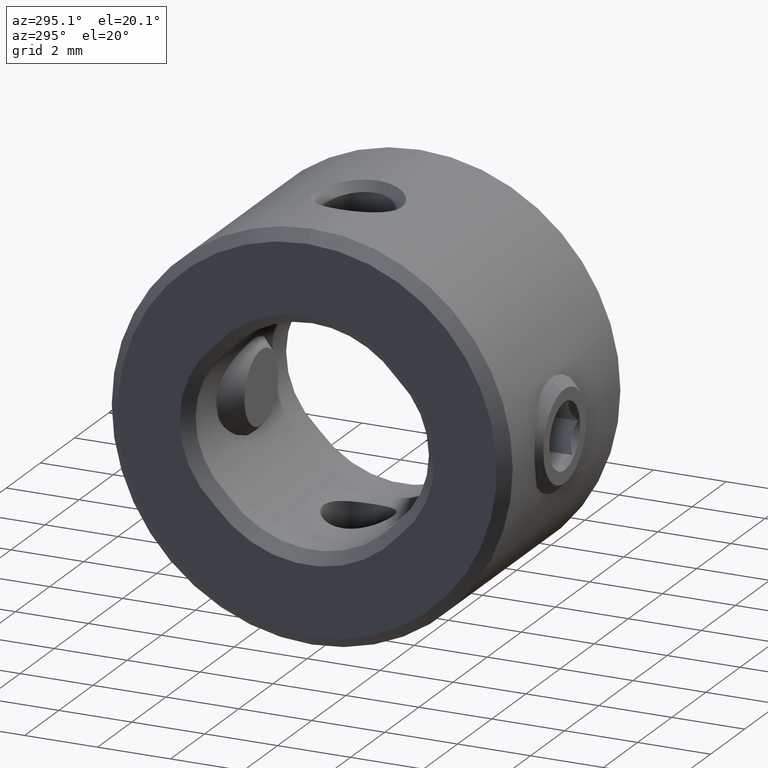
[diagram: clean part render]
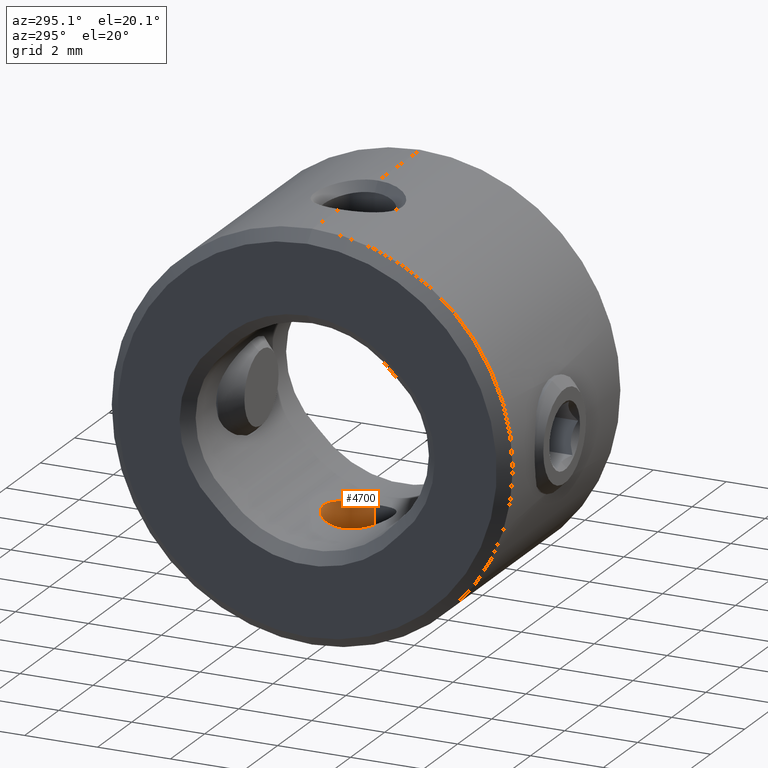
[diagram: same view with one face highlighted and labeled with its STEP entity id]
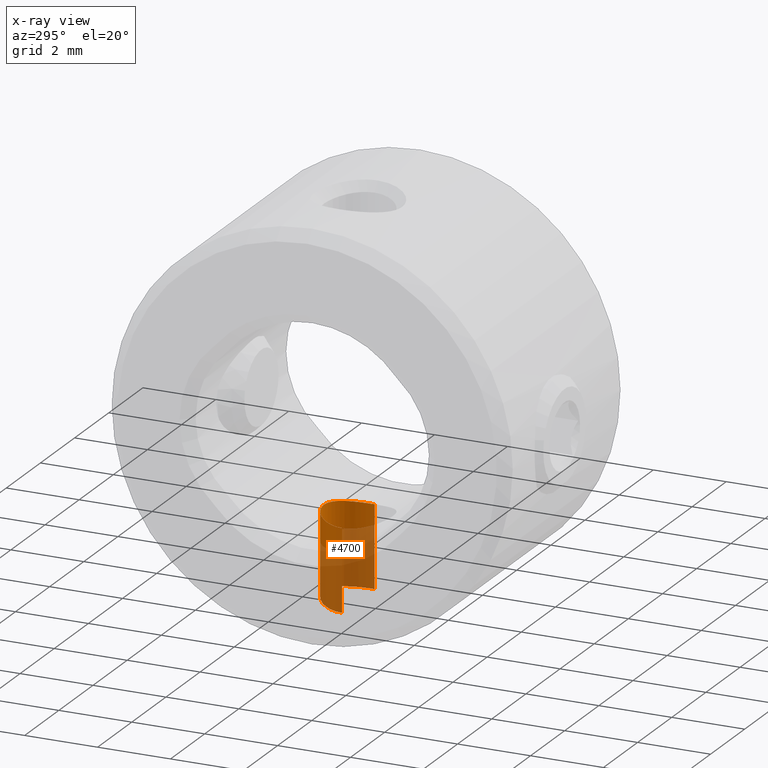
[diagram: x-ray of the same camera — body ghosted, the highlighted face saturated]
A machine part, auxiliary view. The second image highlights one B-rep face of the part: STEP entity #4700.
The next image is the same camera in x-ray: the body ghosted, the highlighted face saturated — about 64% of this face is hidden behind the body in this view.
In plain terms, the highlighted cylindrical surface (partial cylindrical patch) has radius 0.95 mm, axis along (-0, -0, 1).
Its self-contained STEP definition (entity closure, byte-faithful):
#8 = CARTESIAN_POINT ( 'NONE',  ( 2.580720717055093427, 0.8526111675366945253, -5.142162792567869900 ) ) ;
#56 = CARTESIAN_POINT ( 'NONE',  ( 2.260809595717401255, 0.5967537338312135509, -5.194200861994646701 ) ) ;
#79 = CARTESIAN_POINT ( 'NONE',  ( 3.755057708517767878, 0.5767380239020919452, -5.197499001152135811 ) ) ;
#107 = CARTESIAN_POINT ( 'NONE',  ( 3.773227041701959994, 0.5519725902055671041, -5.201381851915404475 ) ) ;
#129 = CARTESIAN_POINT ( 'NONE',  ( 3.619841365519756771, 0.7200952593029100735, -5.171488533006992405 ) ) ;
#155 = CARTESIAN_POINT ( 'NONE',  ( 3.925361420055899497, 0.2172719112508714190, -5.237290996156594325 ) ) ;
#188 = CARTESIAN_POINT ( 'NONE',  ( 3.215434077688460679, 0.9257231561113895557, -5.123788185422677444 ) ) ;
#275 = CARTESIAN_POINT ( 'NONE',  ( 3.758649441743788788, 0.5849056453515856235, -2.943783764361338040 ) ) ;
#337 = CARTESIAN_POINT ( 'NONE',  ( 2.750764673843079322, 0.9252346180244336304, -2.854202044475190991 ) ) ;
#507 = VERTEX_POINT ( 'NONE', #2743 ) ;
#551 = FACE_OUTER_BOUND ( 'NONE', #2180, .T. ) ;
#601 = CARTESIAN_POINT ( 'NONE',  ( 2.423875342681695688, 0.7555251781699551250, -5.164144766995541147 ) ) ;
#625 = CARTESIAN_POINT ( 'NONE',  ( 2.218428971697109287, 0.5402222282991363533, -5.203186012146431061 ) ) ;
#703 = CARTESIAN_POINT ( 'NONE',  ( 3.918401561434590175, 0.2449544080688940140, -5.235502726191666234 ) ) ;
#729 = CARTESIAN_POINT ( 'NONE',  ( 3.480990313732850172, 0.8194968893417500233, -5.149977801534969757 ) ) ;
#755 = CARTESIAN_POINT ( 'NONE',  ( 3.643014946678837074, 0.6994800063100714560, -5.175592035741784613 ) ) ;
#787 = CARTESIAN_POINT ( 'NONE',  ( 3.943968405040195080, 0.1242055347872059595, -5.242091780187043248 ) ) ;
#808 = EDGE_CURVE ( 'NONE', #6144, #6332, #7300, .T. ) ;
#814 = CARTESIAN_POINT ( 'NONE',  ( 3.514748423759796125, 0.7984976429080666849, -5.154746138825196944 ) ) ;
#936 = CARTESIAN_POINT ( 'NONE',  ( 3.950000000000000178, -8.997605898933414137E-17, -3.000000000000000444 ) ) ;
#988 = DIRECTION ( 'NONE',  ( 1.000000000000000000, 0.000000000000000000, 0.000000000000000000 ) ) ;
#1074 = ORIENTED_EDGE ( 'NONE', *, *, #7398, .F. ) ;
#1228 = CARTESIAN_POINT ( 'NONE',  ( 2.526243878217248273, 0.8235883033784368035, -5.149023321053983970 ) ) ;
#1253 = CARTESIAN_POINT ( 'NONE',  ( 2.081682434594883002, 0.2452903660823848309, -5.235481332092808415 ) ) ;
#1276 = VERTEX_POINT ( 'NONE', #2009 ) ;
#1281 = CARTESIAN_POINT ( 'NONE',  ( 2.240701003857684448, 0.5709861646075774511, -5.198403740315459487 ) ) ;
#1304 = CARTESIAN_POINT ( 'NONE',  ( 2.374800091205082619, 0.7153209321184779146, -5.172438220637550543 ) ) ;
#1332 = CARTESIAN_POINT ( 'NONE',  ( 3.461329908873358452, 0.8305938929979420626, -5.147387325591993523 ) ) ;
#1390 = CARTESIAN_POINT ( 'NONE',  ( 2.756000709777283397, 0.9186563968317799089, -5.125646127520788298 ) ) ;
#1417 = CARTESIAN_POINT ( 'NONE',  ( 3.657315635002728715, 0.6861801476364087771, -5.178183203823817138 ) ) ;
#1448 = CARTESIAN_POINT ( 'NONE',  ( 2.519549751153395967, 0.8290626662554543280, -2.883605989815283710 ) ) ;
#1483 = VECTOR ( 'NONE', #3879, 1000.000000000000000 ) ;
#1573 = CARTESIAN_POINT ( 'NONE',  ( 2.170484287138847002, 0.4793762731347327444, -2.963700863258226459 ) ) ;
#1655 = B_SPLINE_CURVE_WITH_KNOTS ( 'NONE', 3,
 ( #6926, #4998, #5715, #4442, #5635, #1836, #1253, #5077, #3070, #7562, #3761, #6357, #4411, #6275, #7624, #2461, #7592, #3095, #1891, #1867, #625, #4356, #1281, #6901, #3157, #56, #7512, #3712, #2539, #7536, #5100, #1304, #3739, #1811, #8159, #4379, #6255, #601, #5026, #5053, #2435, #6877, #2512, #6330, #1228, #3123, #5685, #8, #8133, #5657, #6950, #2486, #1390, #3261, #2567, #7058, #3942, #7699, #4571, #7010, #188, #7035, #2616, #3885, #2648, #6380, #3234, #1947, #3862, #4544, #1332, #729, #3842, #814, #7121, #5742, #3207, #6432, #5234, #4597, #3291, #3911, #7647, #129, #755, #1417, #5175, #5126, #3315, #5762, #7728, #7671, #5816, #5202, #79, #6452, #107, #7756, #7089, #5787, #4493, #2027, #4517, #703, #155, #787, #1975, #6403 ),
 .UNSPECIFIED., .F., .F.,
 ( 4, 2, 2, 2, 2, 2, 2, 2, 1, 2, 2, 2, 1, 2, 2, 2, 2, 1, 2, 2, 2, 2, 2, 2, 2, 2, 2, 2, 2, 2, 2, 2, 2, 2, 2, 2, 2, 1, 2, 2, 2, 1, 2, 2, 2, 2, 2, 1, 2, 2, 2, 2, 2, 2, 2, 2, 4 ),
 ( 0.5001721334120322604, 0.5157917542429063529, 0.5314113750737804454, 0.5470309959046544268, 0.5548408063200914730, 0.5626506167355285193, 0.5704604271509655655, 0.5782702375664026118, 0.5860800479818396580, 0.5899849531895582366, 0.5938898583972768153, 0.6016996688127137505, 0.6056045740204322181, 0.6075570266242913409, 0.6095094792281504636, 0.6251291000590241120, 0.6329389104744607142, 0.6368438156821791818, 0.6387962682860384156, 0.6407487208898977604, 0.6485585313053348067, 0.6524634365130533853, 0.6563683417207719639, 0.6641781521362091212, 0.6719879625516462784, 0.6797977729670835467, 0.6876075833825207040, 0.7032272042133951295, 0.7188468250442696661, 0.7500860667060182951, 0.7657056875368926097, 0.7813253083677671462, 0.7969449291986416828, 0.8047547396140788400, 0.8125645500295159973, 0.8203743604449531546, 0.8281841708603904229, 0.8359939812758276911, 0.8398988864835461587, 0.8438037916912646264, 0.8516136021067016726, 0.8555185073144200292, 0.8574709599182792630, 0.8594234125221386078, 0.8672332229375754320, 0.8750430333530123672, 0.8828528437684493024, 0.8867577489761675480, 0.8887102015800267818, 0.8906626541838861266, 0.8984724645993230618, 0.9023773698070414184, 0.9062822750147599971, 0.9375215166765067387, 0.9531411375073801651, 0.9687607583382533694, 1.000000000000000000 ),
 .UNSPECIFIED. ) ;
#1787 = LINE ( 'NONE', #2584, #1483 ) ;
#1811 = CARTESIAN_POINT ( 'NONE',  ( 2.389404017465515562, 0.7277912320778338051, -5.169907483959435446 ) ) ;
#1836 = CARTESIAN_POINT ( 'NONE',  ( 2.074308314773529283, 0.2156097577730124171, -5.237376628592349981 ) ) ;
#1867 = CARTESIAN_POINT ( 'NONE',  ( 2.206822509896597229, 0.5228936806378496893, -5.205739236885365884 ) ) ;
#1891 = CARTESIAN_POINT ( 'NONE',  ( 2.201798469460336527, 0.5152064525645199122, -5.206852394098592463 ) ) ;
#1947 = CARTESIAN_POINT ( 'NONE',  ( 3.391824206813338627, 0.8655729844902696479, -5.139020422191961757 ) ) ;
#1975 = CARTESIAN_POINT ( 'NONE',  ( 3.949999999999998845, 0.06170388010747530211, -5.243691933688772622 ) ) ;
#2009 = CARTESIAN_POINT ( 'NONE',  ( 2.049999999999999822, 1.163600010519012310E-16, -3.000000000000000444 ) ) ;
#2013 = CYLINDRICAL_SURFACE ( 'NONE', #7584, 0.9500000000000002887 ) ;
#2026 = VECTOR ( 'NONE', #8079, 1000.000000000000000 ) ;
#2027 = CARTESIAN_POINT ( 'NONE',  ( 3.889820982924576676, 0.3343136047339508310, -5.228334080858407340 ) ) ;
#2174 = ORIENTED_EDGE ( 'NONE', *, *, #808, .T. ) ;
#2180 = EDGE_LOOP ( 'NONE', ( #7823, #3044, #2174, #1074 ) ) ;
#2287 = B_SPLINE_CURVE_WITH_KNOTS ( 'NONE', 3,
 ( #7147, #3345, #4722, #1573, #4757, #4003, #1448, #337, #7785, #5265, #7880, #3972, #5332, #275, #6648, #3479, #7851, #936 ),
 .UNSPECIFIED., .F., .F.,
 ( 4, 2, 2, 2, 2, 2, 2, 2, 4 ),
 ( 0.002989500936350762954, 0.003363089938736665320, 0.003736678941122567685, 0.004110267943508470051, 0.004483856945894372850, 0.004857445948280274782, 0.005231034950666177581, 0.005604623953052079513, 0.005978212955437981445 ),
 .UNSPECIFIED. ) ;
#2435 = CARTESIAN_POINT ( 'NONE',  ( 2.460506148840101659, 0.7819842469468174517, -5.158417178712464413 ) ) ;
#2461 = CARTESIAN_POINT ( 'NONE',  ( 2.169853809312081605, 0.4621347184219697923, -5.214089857615570978 ) ) ;
#2486 = CARTESIAN_POINT ( 'NONE',  ( 2.696500070168296403, 0.9007513650621288281, -5.130253817126154914 ) ) ;
#2512 = CARTESIAN_POINT ( 'NONE',  ( 2.485903393450765275, 0.7990487675098680853, -5.154631520296028668 ) ) ;
#2539 = CARTESIAN_POINT ( 'NONE',  ( 2.299123204362592432, 0.6427044587608004012, -5.186368206435084005 ) ) ;
#2567 = CARTESIAN_POINT ( 'NONE',  ( 2.876553692692488617, 0.9440573386276773782, -5.118950143312169132 ) ) ;
#2584 = CARTESIAN_POINT ( 'NONE',  ( 2.049999999999999822, 1.163414459189985682E-16, -5.500000000000000000 ) ) ;
#2616 = CARTESIAN_POINT ( 'NONE',  ( 3.289397408651654864, 0.9049803825322556561, -5.129165193125505340 ) ) ;
#2648 = CARTESIAN_POINT ( 'NONE',  ( 3.334173514330129429, 0.8894265404133848696, -5.133107763227902964 ) ) ;
#2743 = CARTESIAN_POINT ( 'NONE',  ( 2.050000000635553654, -5.749988322858997587E-14, -5.243691723835332219 ) ) ;
#3044 = ORIENTED_EDGE ( 'NONE', *, *, #7350, .T. ) ;
#3070 = CARTESIAN_POINT ( 'NONE',  ( 2.100183482954767200, 0.3050974142991227933, -5.230826965468863499 ) ) ;
#3095 = CARTESIAN_POINT ( 'NONE',  ( 2.193276672534407279, 0.5017577553389874767, -5.208756880338807349 ) ) ;
#3123 = CARTESIAN_POINT ( 'NONE',  ( 2.538066783530578796, 0.8302882577228816174, -5.147460551303025156 ) ) ;
#3157 = CARTESIAN_POINT ( 'NONE',  ( 2.255586851986914443, 0.5902258361764716188, -5.195282454461532140 ) ) ;
#3207 = CARTESIAN_POINT ( 'NONE',  ( 3.551726011965821606, 0.7735223966764119830, -5.160278178635790525 ) ) ;
#3234 = CARTESIAN_POINT ( 'NONE',  ( 3.377872023732322315, 0.8717427027033994857, -5.137505036208523279 ) ) ;
#3261 = CARTESIAN_POINT ( 'NONE',  ( 2.783703467630569861, 0.9255871771130576020, -5.123825132732759080 ) ) ;
#3291 = CARTESIAN_POINT ( 'NONE',  ( 3.596158416365989652, 0.7396706713882663653, -5.167460763510882238 ) ) ;
#3315 = CARTESIAN_POINT ( 'NONE',  ( 3.713583704914705574, 0.6271832059152029348, -5.188997362618802178 ) ) ;
#3345 = CARTESIAN_POINT ( 'NONE',  ( 2.049999999999999822, 0.1245128461822960497, -3.000000000000000444 ) ) ;
#3478 = CARTESIAN_POINT ( 'NONE',  ( 3.950000000000000178, -8.997605898933414137E-17, -3.000000000000000444 ) ) ;
#3479 = CARTESIAN_POINT ( 'NONE',  ( 3.924703537857179736, 0.2507267896086355918, -2.991736978327216079 ) ) ;
#3712 = CARTESIAN_POINT ( 'NONE',  ( 2.279985552594991915, 0.6201331292185429112, -5.190266311758900741 ) ) ;
#3739 = CARTESIAN_POINT ( 'NONE',  ( 2.382684050851487711, 0.7221397117372588825, -5.171062123299022595 ) ) ;
#3761 = CARTESIAN_POINT ( 'NONE',  ( 2.117218641623705544, 0.3513124475054746343, -5.226618549802176439 ) ) ;
#3842 = CARTESIAN_POINT ( 'NONE',  ( 3.501182888989483377, 0.8070812457721268096, -5.152806977270146582 ) ) ;
#3862 = CARTESIAN_POINT ( 'NONE',  ( 3.420000344478285825, 0.8522573033787494978, -5.142247987577778012 ) ) ;
#3879 = DIRECTION ( 'NONE',  ( -0.000000000000000000, -0.000000000000000000, 1.000000000000000000 ) ) ;
#3885 = CARTESIAN_POINT ( 'NONE',  ( 3.304299938263309144, 0.9000850271193365781, -5.130414845728942019 ) ) ;
#3911 = CARTESIAN_POINT ( 'NONE',  ( 3.600797856987477896, 0.7358993317013513558, -5.168241019687670246 ) ) ;
#3942 = CARTESIAN_POINT ( 'NONE',  ( 3.031133253798630633, 0.9499884245176474229, -5.117336044351032953 ) ) ;
#3972 = CARTESIAN_POINT ( 'NONE',  ( 3.479261175722888400, 0.8295542093167737052, -2.883455553718913933 ) ) ;
#4003 = CARTESIAN_POINT ( 'NONE',  ( 2.415951912807403179, 0.7594511932138632293, -2.903675013955858919 ) ) ;
#4356 = CARTESIAN_POINT ( 'NONE',  ( 2.226867646427525216, 0.5522744125192550202, -5.201352138003952241 ) ) ;
#4379 = CARTESIAN_POINT ( 'NONE',  ( 2.394395562152984436, 0.7319574216982378534, -5.169053722695225339 ) ) ;
#4382 = EDGE_CURVE ( 'NONE', #507, #1276, #1787, .T. ) ;
#4411 = CARTESIAN_POINT ( 'NONE',  ( 2.134894496486834825, 0.3928544938135008491, -5.222327363989434978 ) ) ;
#4442 = CARTESIAN_POINT ( 'NONE',  ( 2.057628053222753994, 0.1241472852257603648, -5.241689451733985372 ) ) ;
#4471 = CARTESIAN_POINT ( 'NONE',  ( 3.950000000000000178, -1.138003470772356672E-16, -5.243691718005279334 ) ) ;
#4493 = CARTESIAN_POINT ( 'NONE',  ( 3.852607333506896659, 0.4239676953525332581, -5.219268939915060024 ) ) ;
#4517 = CARTESIAN_POINT ( 'NONE',  ( 3.900446408541381249, 0.3044016350527666281, -5.230976495384171976 ) ) ;
#4544 = CARTESIAN_POINT ( 'NONE',  ( 3.435689467689216237, 0.8443258776392352782, -5.144145535261084312 ) ) ;
#4571 = CARTESIAN_POINT ( 'NONE',  ( 3.124270673434070389, 0.9423542155832547174, -5.119389579232805687 ) ) ;
#4597 = CARTESIAN_POINT ( 'NONE',  ( 3.589610036769995016, 0.7449010431299304402, -5.166371073027069549 ) ) ;
#4700 = ADVANCED_FACE ( 'NONE', ( #551 ), #2013, .F. ) ;
#4714 = CARTESIAN_POINT ( 'NONE',  ( 3.000000000000000000, 0.000000000000000000, -5.500000000000000000 ) ) ;
#4722 = CARTESIAN_POINT ( 'NONE',  ( 2.075184027735848424, 0.2502265904599388913, -2.991773900472576742 ) ) ;
#4757 = CARTESIAN_POINT ( 'NONE',  ( 2.240572809125383369, 0.5840792966606344061, -2.943967743837886175 ) ) ;
#4778 = DIRECTION ( 'NONE',  ( -0.000000000000000000, -0.000000000000000000, 1.000000000000000000 ) ) ;
#4998 = CARTESIAN_POINT ( 'NONE',  ( 2.049999999999998046, 0.03085802566920712448, -5.243692022543305242 ) ) ;
#5026 = CARTESIAN_POINT ( 'NONE',  ( 2.442498683086873346, 0.7692540286178853881, -5.161194597574092491 ) ) ;
#5053 = CARTESIAN_POINT ( 'NONE',  ( 2.448587565675572453, 0.7736260758174638985, -5.160245757878905160 ) ) ;
#5077 = CARTESIAN_POINT ( 'NONE',  ( 2.095245626761324864, 0.2901088636384538955, -5.232062538260255913 ) ) ;
#5100 = CARTESIAN_POINT ( 'NONE',  ( 2.357578354904776852, 0.7000216264153799051, -5.175485692646526026 ) ) ;
#5126 = CARTESIAN_POINT ( 'NONE',  ( 3.698038845533651919, 0.6445802362262776919, -5.185917881704952492 ) ) ;
#5175 = CARTESIAN_POINT ( 'NONE',  ( 3.685854747790486385, 0.6576551558093436389, -5.183549751218364143 ) ) ;
#5202 = CARTESIAN_POINT ( 'NONE',  ( 3.745106086939191226, 0.5895819869852531037, -5.195412092686497729 ) ) ;
#5234 = CARTESIAN_POINT ( 'NONE',  ( 3.579864316791647738, 0.7525787488046852269, -5.164762728390271285 ) ) ;
#5265 = CARTESIAN_POINT ( 'NONE',  ( 3.125226801674089838, 0.9499979292215294802, -2.845611346350652493 ) ) ;
#5332 = CARTESIAN_POINT ( 'NONE',  ( 3.584450182695408937, 0.7590003777137520613, -2.903772699766966170 ) ) ;
#5635 = CARTESIAN_POINT ( 'NONE',  ( 2.062589267249629543, 0.1570152281429196550, -5.240399422813781349 ) ) ;
#5657 = CARTESIAN_POINT ( 'NONE',  ( 2.621524856295111228, 0.8715044805536917849, -5.137564763893759157 ) ) ;
#5685 = CARTESIAN_POINT ( 'NONE',  ( 2.566558923283190019, 0.8455115140581203059, -5.143864495350706001 ) ) ;
#5715 = CARTESIAN_POINT ( 'NONE',  ( 2.051504688755469541, 0.06191994063955030131, -5.243291625507055187 ) ) ;
#5742 = CARTESIAN_POINT ( 'NONE',  ( 3.539785814424164290, 0.7818686319810093099, -5.158448012187056619 ) ) ;
#5762 = CARTESIAN_POINT ( 'NONE',  ( 3.720672367028926786, 0.6190361360906545540, -5.190418924371719811 ) ) ;
#5787 = CARTESIAN_POINT ( 'NONE',  ( 3.825954377746944246, 0.4738996588270865118, -5.212952561938850593 ) ) ;
#5816 = CARTESIAN_POINT ( 'NONE',  ( 3.731600326758948594, 0.6060355492022786450, -5.192641809233332850 ) ) ;
#6144 = VERTEX_POINT ( 'NONE', #4471 ) ;
#6255 = CARTESIAN_POINT ( 'NONE',  ( 2.410982994929645962, 0.7455557691038627866, -5.166249747057705122 ) ) ;
#6275 = CARTESIAN_POINT ( 'NONE',  ( 2.148226217715873076, 0.4209793454928895673, -5.219147277885022085 ) ) ;
#6330 = CARTESIAN_POINT ( 'NONE',  ( 2.499502041361009841, 0.8076164620577079845, -5.152692021373263209 ) ) ;
#6332 = VERTEX_POINT ( 'NONE', #3478 ) ;
#6357 = CARTESIAN_POINT ( 'NONE',  ( 2.128706395657226746, 0.3789073996379059284, -5.223821618372864961 ) ) ;
#6380 = CARTESIAN_POINT ( 'NONE',  ( 3.350310539215642258, 0.8831789921361549167, -5.134671057660582960 ) ) ;
#6403 = CARTESIAN_POINT ( 'NONE',  ( 3.950000000000000178, -1.138003470772356672E-16, -5.243691718005279334 ) ) ;
#6432 = CARTESIAN_POINT ( 'NONE',  ( 3.570363883562890805, 0.7597661896511248569, -5.163232957020218450 ) ) ;
#6452 = CARTESIAN_POINT ( 'NONE',  ( 3.768829206369223694, 0.5580872461231478621, -5.200435386405255933 ) ) ;
#6648 = CARTESIAN_POINT ( 'NONE',  ( 3.829108044728511295, 0.4801254066590366354, -2.963584597138811283 ) ) ;
#6797 = CARTESIAN_POINT ( 'NONE',  ( 3.950000000000000178, 0.000000000000000000, -5.500000000000000000 ) ) ;
#6877 = CARTESIAN_POINT ( 'NONE',  ( 2.465250217721417947, 0.7852459702438012723, -5.157698491824867837 ) ) ;
#6901 = CARTESIAN_POINT ( 'NONE',  ( 2.247911605450719108, 0.5805000587773193610, -5.196880144852518590 ) ) ;
#6926 = CARTESIAN_POINT ( 'NONE',  ( 2.050000000635553654, -5.749988322858997587E-14, -5.243691723835332219 ) ) ;
#6950 = CARTESIAN_POINT ( 'NONE',  ( 2.666516995283984226, 0.8901365410295005720, -5.132945495619061660 ) ) ;
#7010 = CARTESIAN_POINT ( 'NONE',  ( 3.157416828511446560, 0.9373340630168663923, -5.120725697929734643 ) ) ;
#7035 = CARTESIAN_POINT ( 'NONE',  ( 3.244872156906691174, 0.9184220371822240381, -5.125706653753311137 ) ) ;
#7058 = CARTESIAN_POINT ( 'NONE',  ( 2.938799215143485188, 0.9500229517076889119, -5.117327822390374870 ) ) ;
#7089 = CARTESIAN_POINT ( 'NONE',  ( 3.785019408416558040, 0.5350807669605815997, -5.203944235548278563 ) ) ;
#7121 = CARTESIAN_POINT ( 'NONE',  ( 3.522726622036858490, 0.7932866439038840367, -5.155912291225292599 ) ) ;
#7147 = CARTESIAN_POINT ( 'NONE',  ( 2.049999999999999822, 1.163600010519012310E-16, -3.000000000000000444 ) ) ;
#7300 = LINE ( 'NONE', #6797, #2026 ) ;
#7350 = EDGE_CURVE ( 'NONE', #507, #6144, #1655, .T. ) ;
#7398 = EDGE_CURVE ( 'NONE', #1276, #6332, #2287, .T. ) ;
#7512 = CARTESIAN_POINT ( 'NONE',  ( 2.264242317579375552, 0.6009727323135743982, -5.193494449828436110 ) ) ;
#7536 = CARTESIAN_POINT ( 'NONE',  ( 2.344149116445426451, 0.6876110416028666794, -5.177911043761742604 ) ) ;
#7562 = CARTESIAN_POINT ( 'NONE',  ( 2.110928040669396655, 0.3351197512702994707, -5.228163870191664842 ) ) ;
#7584 = AXIS2_PLACEMENT_3D ( 'NONE', #4714, #4778, #988 ) ;
#7592 = CARTESIAN_POINT ( 'NONE',  ( 2.180933381538637583, 0.4817172030099214908, -5.211537513410351430 ) ) ;
#7624 = CARTESIAN_POINT ( 'NONE',  ( 2.156106586734499508, 0.4365261766855658698, -5.217290059785791634 ) ) ;
#7647 = CARTESIAN_POINT ( 'NONE',  ( 3.610179153939389263, 0.7282002896495329836, -5.169827903713116513 ) ) ;
#7671 = CARTESIAN_POINT ( 'NONE',  ( 3.730676527768603368, 0.6071416169432679588, -5.192453354298562473 ) ) ;
#7699 = CARTESIAN_POINT ( 'NONE',  ( 3.062132545073013468, 0.9484799495751291554, -5.117747847588810295 ) ) ;
#7728 = CARTESIAN_POINT ( 'NONE',  ( 3.726799342145057814, 0.6117776127924124951, -5.191663218068626406 ) ) ;
#7756 = CARTESIAN_POINT ( 'NONE',  ( 3.781657666924911343, 0.5399676750463058283, -5.203210123787257224 ) ) ;
#7785 = CARTESIAN_POINT ( 'NONE',  ( 2.874804619122880212, 0.9500020705186640324, -2.845609963788963359 ) ) ;
#7823 = ORIENTED_EDGE ( 'NONE', *, *, #4382, .F. ) ;
#7851 = CARTESIAN_POINT ( 'NONE',  ( 3.950000000000000178, 0.1263814344147351221, -3.000000000000000000 ) ) ;
#7880 = CARTESIAN_POINT ( 'NONE',  ( 3.250464166004809030, 0.9247265337914658545, -2.854357537900541697 ) ) ;
#8079 = DIRECTION ( 'NONE',  ( -0.000000000000000000, -0.000000000000000000, 1.000000000000000000 ) ) ;
#8133 = CARTESIAN_POINT ( 'NONE',  ( 2.608797895833283143, 0.8658532403419265666, -5.138952037388849092 ) ) ;
#8159 = CARTESIAN_POINT ( 'NONE',  ( 2.393619022042226430, 0.7313068035698823133, -5.169186937288368533 ) ) ;